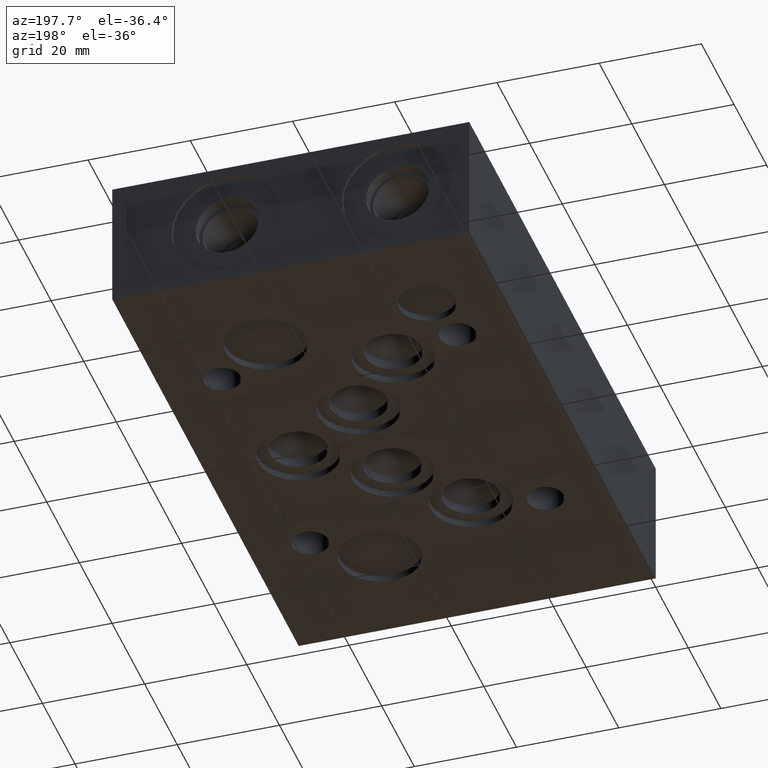
[diagram: clean part render]
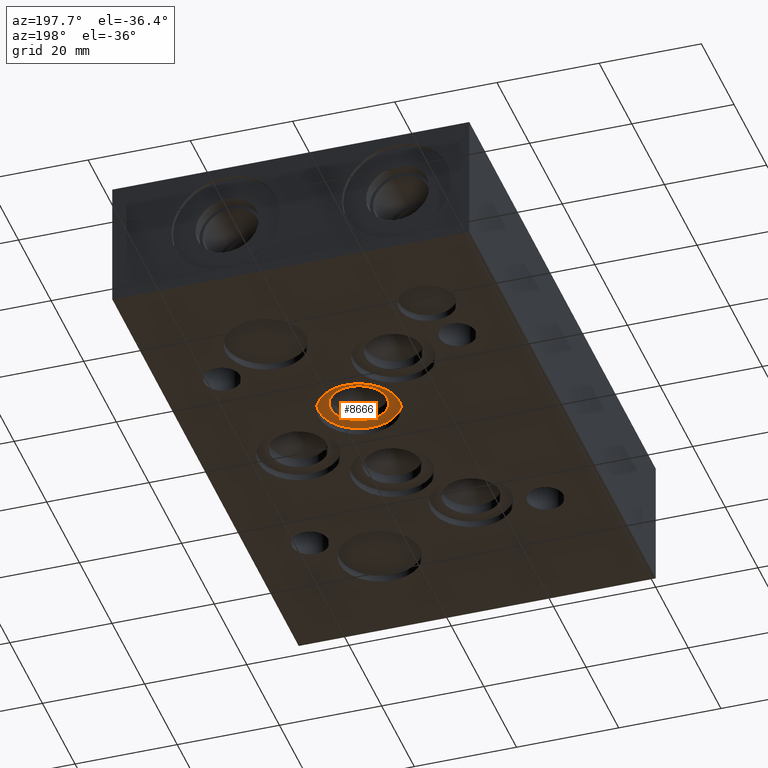
[diagram: same view with one face highlighted and labeled with its STEP entity id]
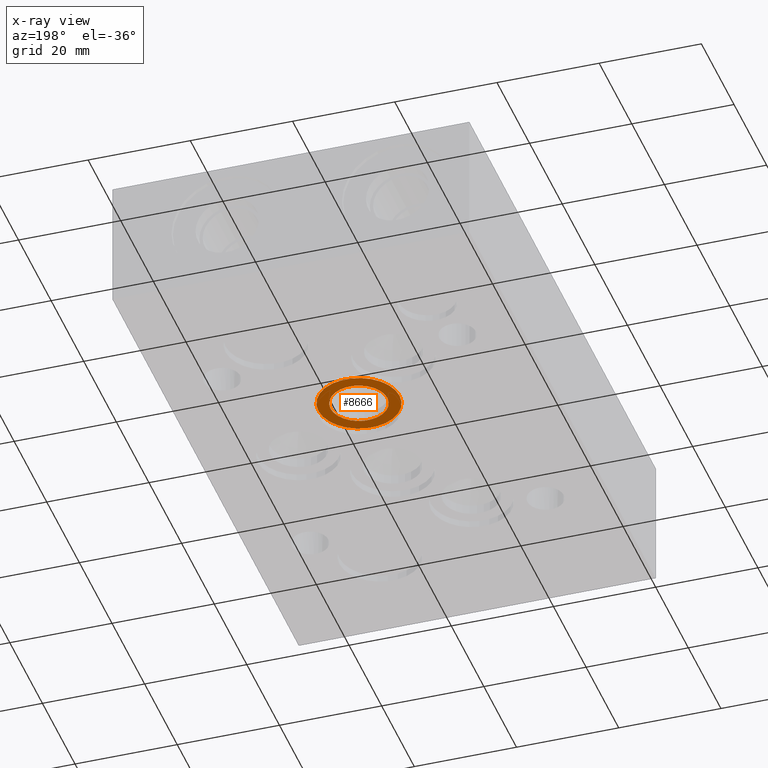
[diagram: x-ray of the same camera — body ghosted, the highlighted face saturated]
A machine part, auxiliary view. The second image highlights one B-rep face of the part: STEP entity #8666.
The next image is the same camera in x-ray: the body ghosted, the highlighted face saturated — about 0% of this face is hidden behind the body in this view.
In plain terms, the highlighted planar face has unit normal (0, 0, -1).
Its self-contained STEP definition (entity closure, byte-faithful):
#42=CIRCLE('',#9060,5.55625);
#60=CIRCLE('',#9095,7.9375);
#219=FACE_BOUND('',#1327,.T.);
#840=FACE_OUTER_BOUND('',#1326,.T.);
#1326=EDGE_LOOP('',(#7278));
#1327=EDGE_LOOP('',(#7279));
#3985=VERTEX_POINT('',#14035);
#4007=VERTEX_POINT('',#14105);
#5097=EDGE_CURVE('',#3985,#3985,#42,.T.);
#5129=EDGE_CURVE('',#4007,#4007,#60,.T.);
#7278=ORIENTED_EDGE('',*,*,#5129,.T.);
#7279=ORIENTED_EDGE('',*,*,#5097,.T.);
#7917=PLANE('',#9096);
#8666=ADVANCED_FACE('',(#840,#219),#7917,.T.);
#9060=AXIS2_PLACEMENT_3D('',#14036,#10710,#10711);
#9095=AXIS2_PLACEMENT_3D('',#14107,#10794,#10795);
#9096=AXIS2_PLACEMENT_3D('',#14108,#10796,#10797);
#10710=DIRECTION('center_axis',(0.,0.,1.));
#10711=DIRECTION('ref_axis',(1.,0.,0.));
#10794=DIRECTION('center_axis',(0.,0.,-1.));
#10795=DIRECTION('ref_axis',(1.,0.,0.));
#10796=DIRECTION('center_axis',(0.,0.,-1.));
#10797=DIRECTION('ref_axis',(1.,0.,0.));
#14035=CARTESIAN_POINT('',(30.98165,67.4878,1.3208));
#14036=CARTESIAN_POINT('Origin',(36.5379,67.4878,1.3208));
#14105=CARTESIAN_POINT('',(28.5877,67.4878,1.3208));
#14107=CARTESIAN_POINT('Origin',(36.5252,67.4878,1.3208));
#14108=CARTESIAN_POINT('Origin',(36.5252,67.4878,1.3208));